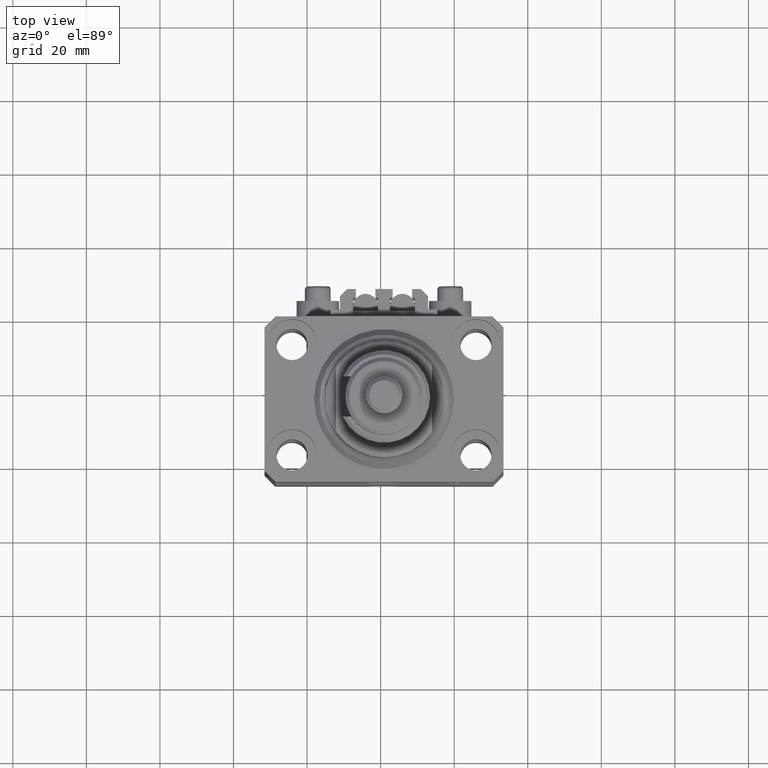
[diagram: clean part render]
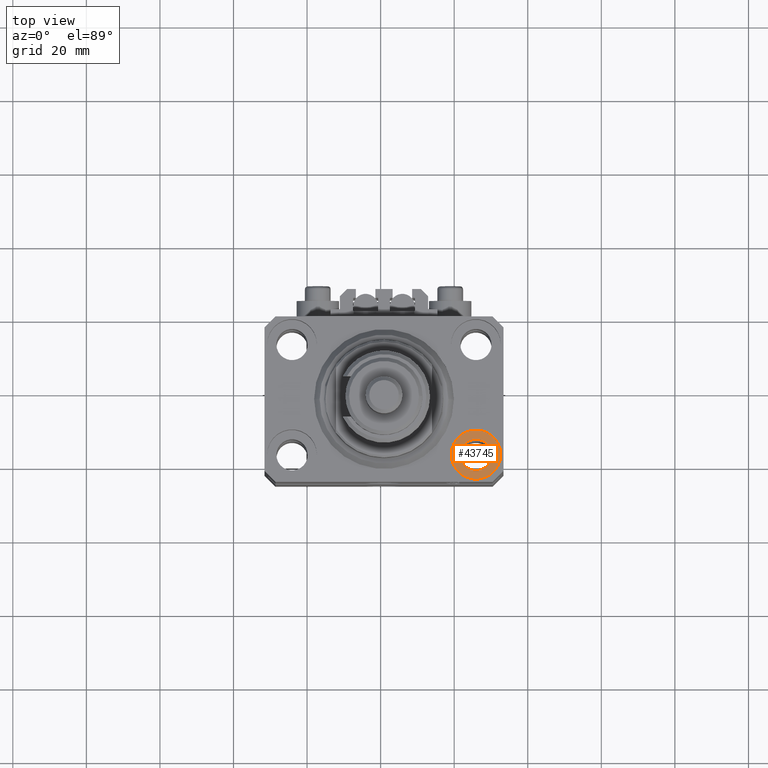
[diagram: same view with one face highlighted and labeled with its STEP entity id]
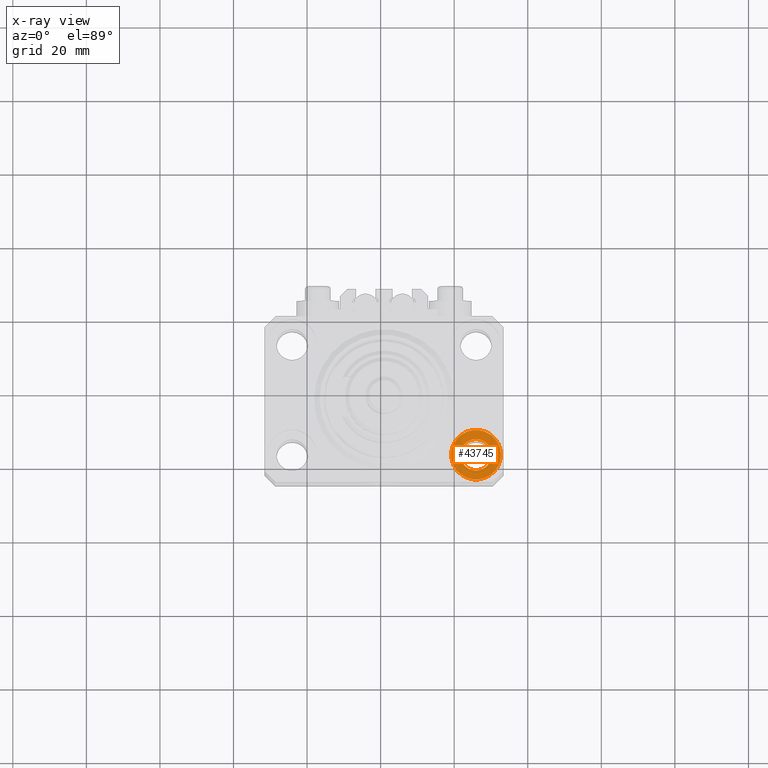
[diagram: x-ray of the same camera — body ghosted, the highlighted face saturated]
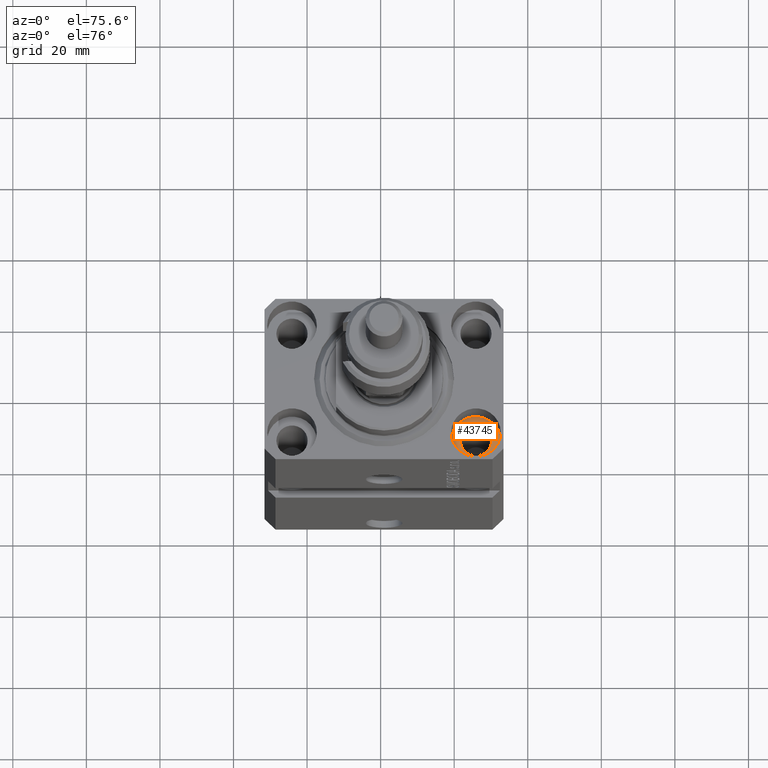
[diagram: same view with one face highlighted and labeled with its STEP entity id]
A machine part, top view. The second image highlights one B-rep face of the part: STEP entity #43745.
The next image is the same camera in x-ray: the body ghosted, the highlighted face saturated — about 0% of this face is hidden behind the body in this view.
A second angle (auxiliary view) of the same face is appended — the face is thin or edge-on in the first view.
In plain terms, the highlighted planar face has unit normal (0, 0, 1).
Its self-contained STEP definition (entity closure, byte-faithful):
#1055 = AXIS2_PLACEMENT_3D ( 'NONE', #21001, #36909, #32814 ) ;
#2428 = CARTESIAN_POINT ( 'NONE',  ( 25.00000000000000355, -15.00000000000000000, -9.000000000000000000 ) ) ;
#3138 = AXIS2_PLACEMENT_3D ( 'NONE', #37817, #10822, #18293 ) ;
#3182 = FACE_BOUND ( 'NONE', #40332, .T. ) ;
#4008 = CIRCLE ( 'NONE', #32741, 6.749999999977465137 ) ;
#4054 = AXIS2_PLACEMENT_3D ( 'NONE', #5936, #10287, #37030 ) ;
#4673 = DIRECTION ( 'NONE',  ( 1.000000000000000000, 0.000000000000000000, 0.000000000000000000 ) ) ;
#5936 = CARTESIAN_POINT ( 'NONE',  ( 25.00000000000000355, -15.00000000000000000, -9.000000000000000000 ) ) ;
#6142 = VERTEX_POINT ( 'NONE', #30761 ) ;
#10287 = DIRECTION ( 'NONE',  ( 0.000000000000000000, 0.000000000000000000, 1.000000000000000000 ) ) ;
#10822 = DIRECTION ( 'NONE',  ( 0.000000000000000000, 0.000000000000000000, 1.000000000000000000 ) ) ;
#13377 = ORIENTED_EDGE ( 'NONE', *, *, #15265, .T. ) ;
#13680 = ORIENTED_EDGE ( 'NONE', *, *, #19976, .T. ) ;
#15265 = EDGE_CURVE ( 'NONE', #46185, #6142, #25299, .T. ) ;
#18293 = DIRECTION ( 'NONE',  ( 1.000000000000000000, 0.000000000000000000, 0.000000000000000000 ) ) ;
#18603 = DIRECTION ( 'NONE',  ( 1.000000000000000000, 0.000000000000000000, -0.000000000000000000 ) ) ;
#18864 = DIRECTION ( 'NONE',  ( 0.000000000000000000, 0.000000000000000000, 1.000000000000000000 ) ) ;
#19976 = EDGE_CURVE ( 'NONE', #6142, #46185, #4008, .T. ) ;
#20977 = EDGE_CURVE ( 'NONE', #38648, #46380, #42611, .T. ) ;
#21001 = CARTESIAN_POINT ( 'NONE',  ( 25.00000000000000355, -15.00000000000000000, -9.000000000000000000 ) ) ;
#21688 = CARTESIAN_POINT ( 'NONE',  ( 20.75000000002254197, -15.00000000000000000, -9.000000000000000000 ) ) ;
#23708 = CARTESIAN_POINT ( 'NONE',  ( 25.00000000000000355, -15.00000000000000000, -9.000000000000000000 ) ) ;
#23958 = DIRECTION ( 'NONE',  ( 0.000000000000000000, 0.000000000000000000, 1.000000000000000000 ) ) ;
#25299 = CIRCLE ( 'NONE', #3138, 6.749999999977465137 ) ;
#30761 = CARTESIAN_POINT ( 'NONE',  ( 18.25000000002253842, -15.00000000000000000, -9.000000000000000000 ) ) ;
#30932 = PLANE ( 'NONE',  #43777 ) ;
#32741 = AXIS2_PLACEMENT_3D ( 'NONE', #23708, #23958, #4673 ) ;
#32770 = EDGE_LOOP ( 'NONE', ( #13377, #13680 ) ) ;
#32814 = DIRECTION ( 'NONE',  ( 1.000000000000000000, 0.000000000000000000, 0.000000000000000000 ) ) ;
#36105 = CARTESIAN_POINT ( 'NONE',  ( 29.24999999997746869, -15.00000000000000000, -9.000000000000000000 ) ) ;
#36909 = DIRECTION ( 'NONE',  ( 0.000000000000000000, 0.000000000000000000, 1.000000000000000000 ) ) ;
#37030 = DIRECTION ( 'NONE',  ( 1.000000000000000000, 0.000000000000000000, 0.000000000000000000 ) ) ;
#37817 = CARTESIAN_POINT ( 'NONE',  ( 25.00000000000000355, -15.00000000000000000, -9.000000000000000000 ) ) ;
#38648 = VERTEX_POINT ( 'NONE', #36105 ) ;
#39641 = CIRCLE ( 'NONE', #1055, 4.249999999977462473 ) ;
#40332 = EDGE_LOOP ( 'NONE', ( #44795, #43273 ) ) ;
#40971 = CARTESIAN_POINT ( 'NONE',  ( 31.74999999997746869, -15.00000000000000000, -9.000000000000000000 ) ) ;
#42434 = EDGE_CURVE ( 'NONE', #46380, #38648, #39641, .T. ) ;
#42611 = CIRCLE ( 'NONE', #4054, 4.249999999977462473 ) ;
#43273 = ORIENTED_EDGE ( 'NONE', *, *, #42434, .F. ) ;
#43745 = ADVANCED_FACE ( 'NONE', ( #3182, #50467 ), #30932, .T. ) ;
#43777 = AXIS2_PLACEMENT_3D ( 'NONE', #2428, #18864, #18603 ) ;
#44795 = ORIENTED_EDGE ( 'NONE', *, *, #20977, .F. ) ;
#46185 = VERTEX_POINT ( 'NONE', #40971 ) ;
#46380 = VERTEX_POINT ( 'NONE', #21688 ) ;
#50467 = FACE_OUTER_BOUND ( 'NONE', #32770, .T. ) ;